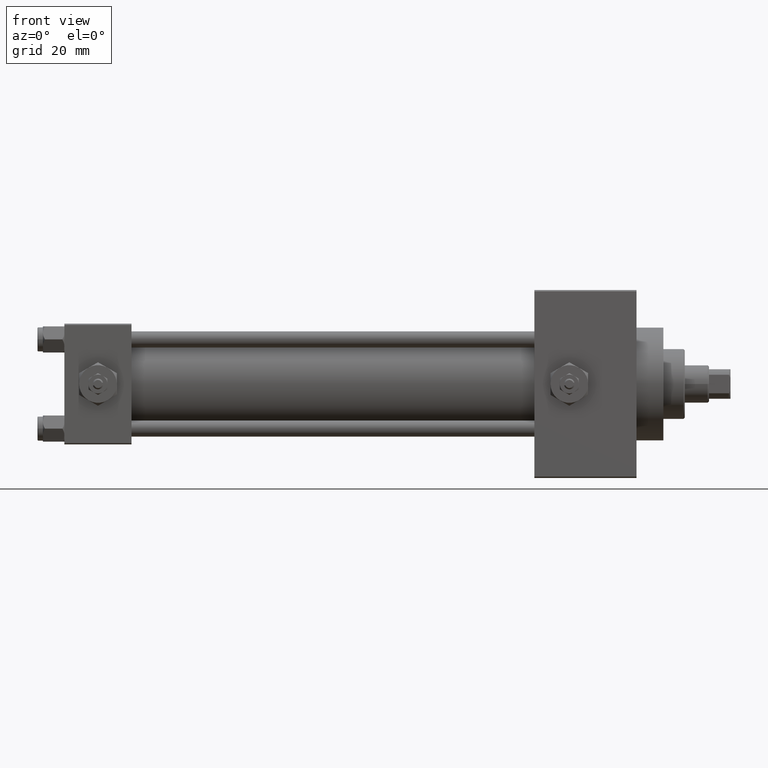
[diagram: clean part render]
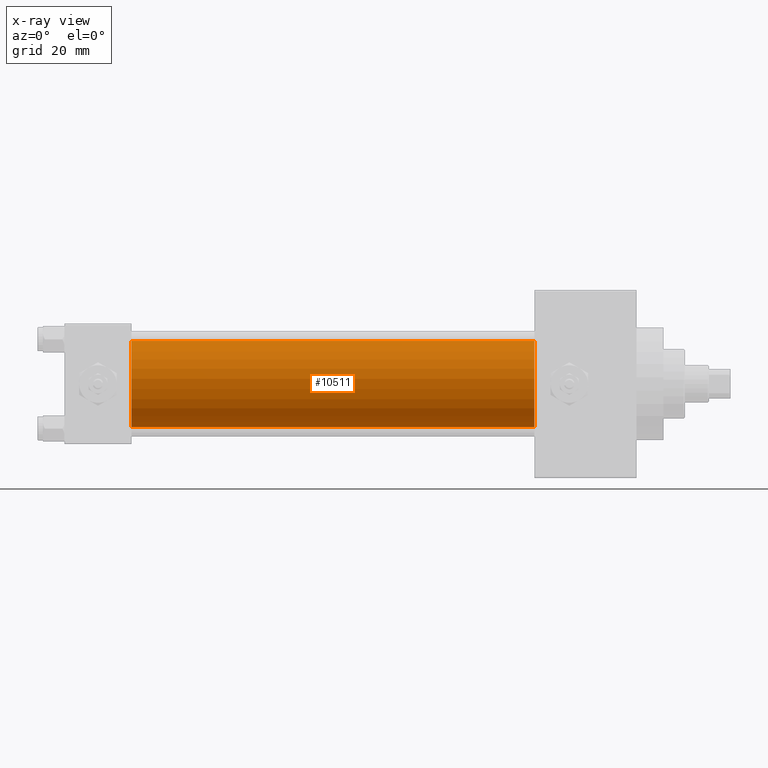
[diagram: x-ray — body ghosted, one internal face saturated and labeled with its STEP entity id]
A machine part, front view, then the same camera in x-ray: the body is ghosted and one INTERNAL B-rep face — a face not visible from any outside direction — is saturated and labeled: STEP entity #10511.
In plain terms, the highlighted cylindrical surface (partial cylindrical patch) has radius 16 mm, axis along (-1, -0, -0).
Its self-contained STEP definition (entity closure, byte-faithful):
#2252 = CARTESIAN_POINT ( 'NONE',  ( 175.0000000000000000, -2.602085213965210642E-15, 16.00000000000000000 ) ) ;
#4506 = VERTEX_POINT ( 'NONE', #12311 ) ;
#5447 = DIRECTION ( 'NONE',  ( -1.000000000000000000, -0.000000000000000000, -0.000000000000000000 ) ) ;
#7106 = EDGE_CURVE ( 'NONE', #21100, #23743, #18686, .T. ) ;
#8085 = DIRECTION ( 'NONE',  ( 1.000000000000000000, 0.000000000000000000, 0.000000000000000000 ) ) ;
#8276 = VECTOR ( 'NONE', #5447, 1000.000000000000000 ) ;
#9730 = EDGE_CURVE ( 'NONE', #23743, #18087, #21408, .T. ) ;
#10511 = ADVANCED_FACE ( 'NONE', ( #16593 ), #35698, .F. ) ;
#11643 = EDGE_CURVE ( 'NONE', #21100, #4506, #30199, .T. ) ;
#11804 = CARTESIAN_POINT ( 'NONE',  ( 175.0000000000000000, -2.602085213965210642E-15, 0.000000000000000000 ) ) ;
#12311 = CARTESIAN_POINT ( 'NONE',  ( 175.0000000000000000, -6.426503353294456087E-16, -16.00000000000000000 ) ) ;
#12630 = DIRECTION ( 'NONE',  ( 0.000000000000000000, 0.000000000000000000, 1.000000000000000000 ) ) ;
#13915 = ORIENTED_EDGE ( 'NONE', *, *, #22275, .T. ) ;
#14482 = DIRECTION ( 'NONE',  ( 1.000000000000000000, 0.000000000000000000, 0.000000000000000000 ) ) ;
#16593 = FACE_OUTER_BOUND ( 'NONE', #38899, .T. ) ;
#18087 = VERTEX_POINT ( 'NONE', #37723 ) ;
#18686 = LINE ( 'NONE', #27796, #29900 ) ;
#19202 = DIRECTION ( 'NONE',  ( 0.000000000000000000, 0.000000000000000000, -1.000000000000000000 ) ) ;
#21100 = VERTEX_POINT ( 'NONE', #2252 ) ;
#21408 = CIRCLE ( 'NONE', #39623, 16.00000000000000000 ) ;
#22275 = EDGE_CURVE ( 'NONE', #4506, #18087, #43424, .T. ) ;
#23743 = VERTEX_POINT ( 'NONE', #48573 ) ;
#24782 = CARTESIAN_POINT ( 'NONE',  ( 175.0000000000000000, -6.426503353294456087E-16, -16.00000000000000000 ) ) ;
#27796 = CARTESIAN_POINT ( 'NONE',  ( 175.0000000000000000, -2.602085213965210642E-15, 16.00000000000000000 ) ) ;
#29900 = VECTOR ( 'NONE', #31025, 1000.000000000000000 ) ;
#30199 = CIRCLE ( 'NONE', #32567, 16.00000000000000000 ) ;
#31025 = DIRECTION ( 'NONE',  ( -1.000000000000000000, -0.000000000000000000, -0.000000000000000000 ) ) ;
#31163 = DIRECTION ( 'NONE',  ( 0.000000000000000000, 0.000000000000000000, -1.000000000000000000 ) ) ;
#31974 = DIRECTION ( 'NONE',  ( -1.000000000000000000, -0.000000000000000000, -0.000000000000000000 ) ) ;
#32567 = AXIS2_PLACEMENT_3D ( 'NONE', #11804, #8085, #31163 ) ;
#34518 = ORIENTED_EDGE ( 'NONE', *, *, #7106, .F. ) ;
#35698 = CYLINDRICAL_SURFACE ( 'NONE', #38883, 16.00000000000000000 ) ;
#36832 = CARTESIAN_POINT ( 'NONE',  ( 175.0000000000000000, -2.602085213965210642E-15, 0.000000000000000000 ) ) ;
#37723 = CARTESIAN_POINT ( 'NONE',  ( 25.00000000000000000, -6.426503353294456087E-16, -16.00000000000000000 ) ) ;
#38138 = ORIENTED_EDGE ( 'NONE', *, *, #11643, .T. ) ;
#38883 = AXIS2_PLACEMENT_3D ( 'NONE', #36832, #31974, #12630 ) ;
#38899 = EDGE_LOOP ( 'NONE', ( #38138, #13915, #39672, #34518 ) ) ;
#39623 = AXIS2_PLACEMENT_3D ( 'NONE', #48495, #14482, #19202 ) ;
#39672 = ORIENTED_EDGE ( 'NONE', *, *, #9730, .F. ) ;
#43424 = LINE ( 'NONE', #24782, #8276 ) ;
#48495 = CARTESIAN_POINT ( 'NONE',  ( 25.00000000000000000, -2.602085213965210642E-15, 0.000000000000000000 ) ) ;
#48573 = CARTESIAN_POINT ( 'NONE',  ( 25.00000000000000000, -2.602085213965210642E-15, 16.00000000000000000 ) ) ;